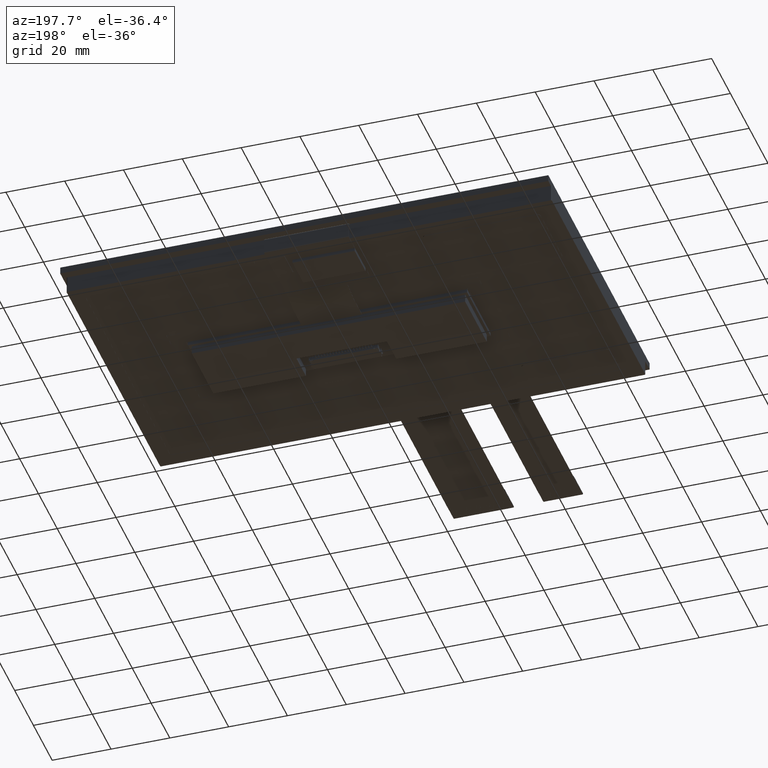
[diagram: clean part render]
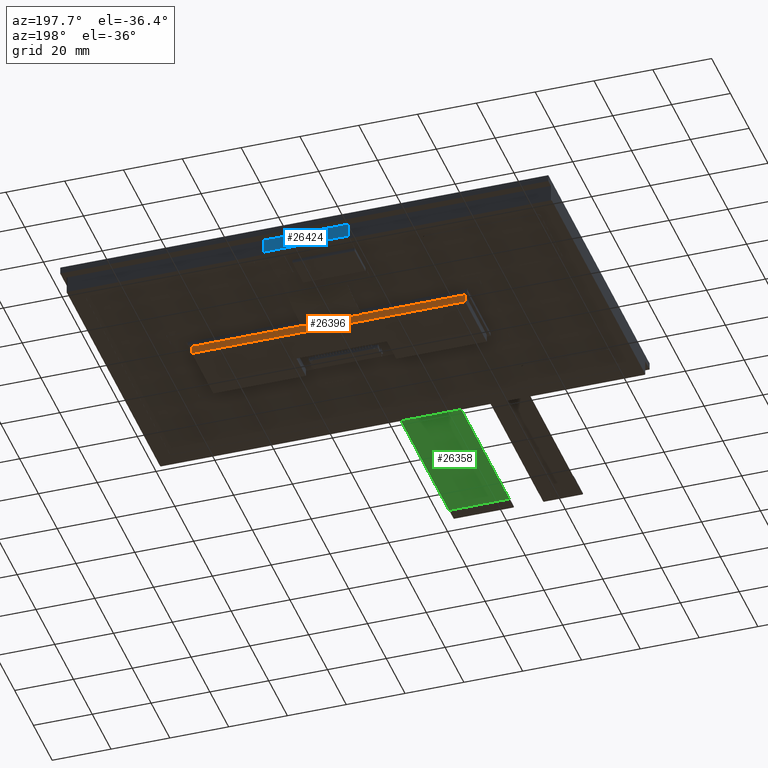
[diagram: same view with three faces highlighted in distinct colors, each labeled with its STEP entity id]
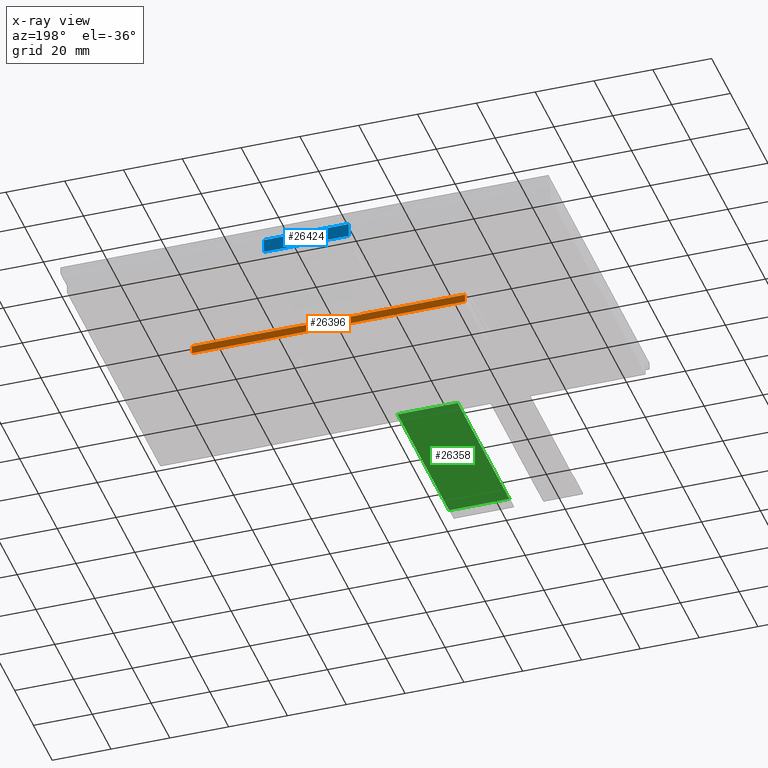
[diagram: x-ray of the same camera — body ghosted, the three highlighted faces saturated]
A machine part, auxiliary view with three faces highlighted in distinct colors.
The next image is the same camera in x-ray (body ghosted, the three faces saturated) — at least one of them is partly hidden behind the body in this view.
Their STEP definitions:

[orange] entity #26396 — the highlighted planar face has unit normal (-0, -1, -0).
#1126=FACE_OUTER_BOUND('',#2510,.T.);
#2510=EDGE_LOOP('',(#19094,#19095,#19096,#19097,#19098,#19099,#19100,#19101));
#4619=LINE('',#38485,#8089);
#4622=LINE('',#38492,#8092);
#4623=LINE('',#38494,#8093);
#4624=LINE('',#38496,#8094);
#4625=LINE('',#38497,#8095);
#4626=LINE('',#38499,#8096);
#4627=LINE('',#38501,#8097);
#4628=LINE('',#38502,#8098);
#8089=VECTOR('',#31052,1000.);
#8092=VECTOR('',#31057,10.);
#8093=VECTOR('',#31058,10.);
#8094=VECTOR('',#31059,1000.);
#8095=VECTOR('',#31060,1000.);
#8096=VECTOR('',#31061,10.);
#8097=VECTOR('',#31062,10.);
#8098=VECTOR('',#31063,10.);
#11239=VERTEX_POINT('',#38481);
#11241=VERTEX_POINT('',#38484);
#11243=VERTEX_POINT('',#38490);
#11244=VERTEX_POINT('',#38491);
#11245=VERTEX_POINT('',#38493);
#11246=VERTEX_POINT('',#38495);
#11247=VERTEX_POINT('',#38498);
#11248=VERTEX_POINT('',#38500);
#14157=EDGE_CURVE('',#11241,#11239,#4619,.T.);
#14160=EDGE_CURVE('',#11243,#11244,#4622,.T.);
#14161=EDGE_CURVE('',#11245,#11243,#4623,.T.);
#14162=EDGE_CURVE('',#11246,#11245,#4624,.T.);
#14163=EDGE_CURVE('',#11241,#11246,#4625,.T.);
#14164=EDGE_CURVE('',#11247,#11239,#4626,.T.);
#14165=EDGE_CURVE('',#11248,#11247,#4627,.T.);
#14166=EDGE_CURVE('',#11244,#11248,#4628,.T.);
#19094=ORIENTED_EDGE('',*,*,#14160,.F.);
#19095=ORIENTED_EDGE('',*,*,#14161,.F.);
#19096=ORIENTED_EDGE('',*,*,#14162,.F.);
#19097=ORIENTED_EDGE('',*,*,#14163,.F.);
#19098=ORIENTED_EDGE('',*,*,#14157,.T.);
#19099=ORIENTED_EDGE('',*,*,#14164,.F.);
#19100=ORIENTED_EDGE('',*,*,#14165,.F.);
#19101=ORIENTED_EDGE('',*,*,#14166,.F.);
#25221=PLANE('',#27821);
#26396=ADVANCED_FACE('',(#1126),#25221,.F.);
#27821=AXIS2_PLACEMENT_3D('',#38489,#31055,#31056);
#31052=DIRECTION('',(-1.46302386084131E-98,5.00520773795775E-147,1.));
#31055=DIRECTION('center_axis',(-4.66323515047529E-18,-1.,-6.82242429385927E-116));
#31056=DIRECTION('ref_axis',(-1.,4.66323515047529E-18,-1.46302386084131E-98));
#31057=DIRECTION('',(1.46302386084131E-98,-5.00520773795775E-147,-1.));
#31058=DIRECTION('',(-1.,4.66323515047529E-18,-1.46302386084131E-98));
#31059=DIRECTION('',(-1.46302386084131E-98,5.00520773795775E-147,1.));
#31060=DIRECTION('',(1.,-4.66323515047529E-18,1.46302386084131E-98));
#31061=DIRECTION('',(-1.,4.66323515047529E-18,-1.46302386084131E-98));
#31062=DIRECTION('',(-1.46302386084131E-98,5.00520773795775E-147,1.));
#31063=DIRECTION('',(-1.,4.66323515047529E-18,-1.46302386084131E-98));
#38481=CARTESIAN_POINT('',(-42.125,13.2697566730066,-10.2300000000001));
#38484=CARTESIAN_POINT('',(-42.125,13.2697566730066,-13.03));
#38485=CARTESIAN_POINT('',(-42.125,13.2697566730066,-13.03));
#38489=CARTESIAN_POINT('Origin',(50.875,13.2697566730066,-13.03));
#38490=CARTESIAN_POINT('',(13.4831,13.2697566730066,-10.2300000000001));
#38491=CARTESIAN_POINT('',(13.4831,13.2697566730066,-10.3500000000009));
#38492=CARTESIAN_POINT('',(13.4831,13.2697566730066,-8.50499999999954));
#38493=CARTESIAN_POINT('',(50.875,13.2697566730066,-10.2300000000001));
#38494=CARTESIAN_POINT('',(51.375,13.2697566730066,-10.2300000000001));
#38495=CARTESIAN_POINT('',(50.875,13.2697566730066,-13.03));
#38496=CARTESIAN_POINT('',(50.875,13.2697566730066,-13.03));
#38497=CARTESIAN_POINT('',(50.875,13.2697566730066,-13.03));
#38498=CARTESIAN_POINT('',(-7.0386,13.2697566730066,-10.2300000000001));
#38499=CARTESIAN_POINT('',(51.375,13.2697566730066,-10.2300000000001));
#38500=CARTESIAN_POINT('',(-7.0386,13.2697566730066,-10.3500000000009));
#38501=CARTESIAN_POINT('',(-7.0386,13.2697566730066,-3.88610000000012));
#38502=CARTESIAN_POINT('',(32.17905,13.2697566730066,-10.3500000000009));

[blue] entity #26424 — the highlighted planar face has unit normal (0, 1, 0).
#1154=FACE_OUTER_BOUND('',#2538,.T.);
#2538=EDGE_LOOP('',(#19247,#19248,#19249,#19250));
#4698=LINE('',#38656,#8168);
#4705=LINE('',#38676,#8175);
#4706=LINE('',#38680,#8176);
#4707=LINE('',#38681,#8177);
#8168=VECTOR('',#31189,1000.);
#8175=VECTOR('',#31214,1000.);
#8176=VECTOR('',#31219,1000.);
#8177=VECTOR('',#31220,1000.);
#11303=VERTEX_POINT('',#38653);
#11304=VERTEX_POINT('',#38655);
#11308=VERTEX_POINT('',#38675);
#11309=VERTEX_POINT('',#38679);
#14243=EDGE_CURVE('',#11303,#11304,#4698,.T.);
#14253=EDGE_CURVE('',#11308,#11304,#4705,.T.);
#14255=EDGE_CURVE('',#11309,#11303,#4706,.T.);
#14256=EDGE_CURVE('',#11309,#11308,#4707,.T.);
#19247=ORIENTED_EDGE('',*,*,#14243,.F.);
#19248=ORIENTED_EDGE('',*,*,#14255,.F.);
#19249=ORIENTED_EDGE('',*,*,#14256,.T.);
#19250=ORIENTED_EDGE('',*,*,#14253,.T.);
#25246=PLANE('',#27860);
#26424=ADVANCED_FACE('',(#1154),#25246,.T.);
#27860=AXIS2_PLACEMENT_3D('',#38678,#31217,#31218);
#31189=DIRECTION('',(1.46302386084131E-98,-5.00520773795775E-147,-1.));
#31214=DIRECTION('',(-1.,1.66506784211801E-48,-1.46302386084131E-98));
#31217=DIRECTION('center_axis',(1.66506784211801E-48,1.,1.93551320914243E-146));
#31218=DIRECTION('ref_axis',(1.,-1.66506784211801E-48,1.46302386084131E-98));
#31219=DIRECTION('',(-1.,1.66506784211801E-48,-1.46302386084131E-98));
#31220=DIRECTION('',(1.46302386084131E-98,-5.00520773795775E-147,-1.));
#38653=CARTESIAN_POINT('',(-15.3325,53.3597566730071,-3.97999999999831));
#38655=CARTESIAN_POINT('',(-15.3325,53.3597566730076,-8.7300000000001));
#38656=CARTESIAN_POINT('',(-15.3325,53.3597566730076,-3.97999999999831));
#38675=CARTESIAN_POINT('',(13.4831,53.3597566730076,-8.7300000000001));
#38676=CARTESIAN_POINT('',(13.4831,53.3597566730076,-8.7300000000001));
#38678=CARTESIAN_POINT('Origin',(13.4831,53.3597566730076,-3.97999999999831));
#38679=CARTESIAN_POINT('',(13.4831,53.3597566730071,-3.97999999999831));
#38680=CARTESIAN_POINT('',(13.4831,53.3597566730071,-3.97999999999831));
#38681=CARTESIAN_POINT('',(13.4831,53.3597566730076,-3.97999999999831));

[green] entity #26358 — the highlighted planar face has unit normal (0, 0, -1).
#1088=FACE_OUTER_BOUND('',#2468,.T.);
#2468=EDGE_LOOP('',(#18902,#18903,#18904,#18905));
#4323=LINE('',#37869,#7793);
#4541=LINE('',#38306,#8011);
#4542=LINE('',#38308,#8012);
#4543=LINE('',#38309,#8013);
#7793=VECTOR('',#30444,10.);
#8011=VECTOR('',#30882,10.);
#8012=VECTOR('',#30883,10.);
#8013=VECTOR('',#30884,10.);
#11076=VERTEX_POINT('',#37866);
#11077=VERTEX_POINT('',#37868);
#11186=VERTEX_POINT('',#38305);
#11187=VERTEX_POINT('',#38307);
#13852=EDGE_CURVE('',#11077,#11076,#4323,.T.);
#14070=EDGE_CURVE('',#11076,#11186,#4541,.T.);
#14071=EDGE_CURVE('',#11187,#11186,#4542,.T.);
#14072=EDGE_CURVE('',#11187,#11077,#4543,.T.);
#18902=ORIENTED_EDGE('',*,*,#13852,.T.);
#18903=ORIENTED_EDGE('',*,*,#14070,.T.);
#18904=ORIENTED_EDGE('',*,*,#14071,.F.);
#18905=ORIENTED_EDGE('',*,*,#14072,.T.);
#25188=PLANE('',#27774);
#26358=ADVANCED_FACE('',(#1088),#25188,.T.);
#27774=AXIS2_PLACEMENT_3D('',#38304,#30880,#30881);
#30444=DIRECTION('',(-1.,0.,0.));
#30880=DIRECTION('center_axis',(0.,0.,-1.));
#30881=DIRECTION('ref_axis',(1.,0.,0.));
#30882=DIRECTION('',(-7.40148683083438E-17,1.,0.));
#30883=DIRECTION('',(-1.,-5.35047240783208E-17,0.));
#30884=DIRECTION('',(1.85037170770859E-16,-1.,0.));
#37866=CARTESIAN_POINT('',(-18.12,-109.000243326993,-1.2));
#37868=CARTESIAN_POINT('',(2.38,-109.000243326993,-1.2));
#37869=CARTESIAN_POINT('',(-2.745,-109.000243326993,-1.2));
#38304=CARTESIAN_POINT('Origin',(-7.87000000000001,-84.0002433269934,-1.2));
#38305=CARTESIAN_POINT('',(-18.12,-54.0002433269934,-1.2));
#38306=CARTESIAN_POINT('',(-18.12,-54.0002433269934,-1.2));
#38307=CARTESIAN_POINT('',(2.37999999999999,-54.0002433269934,-1.2));
#38308=CARTESIAN_POINT('',(37.365,-54.0002433269934,-1.2));
#38309=CARTESIAN_POINT('',(2.38,-114.000243326993,-1.2));